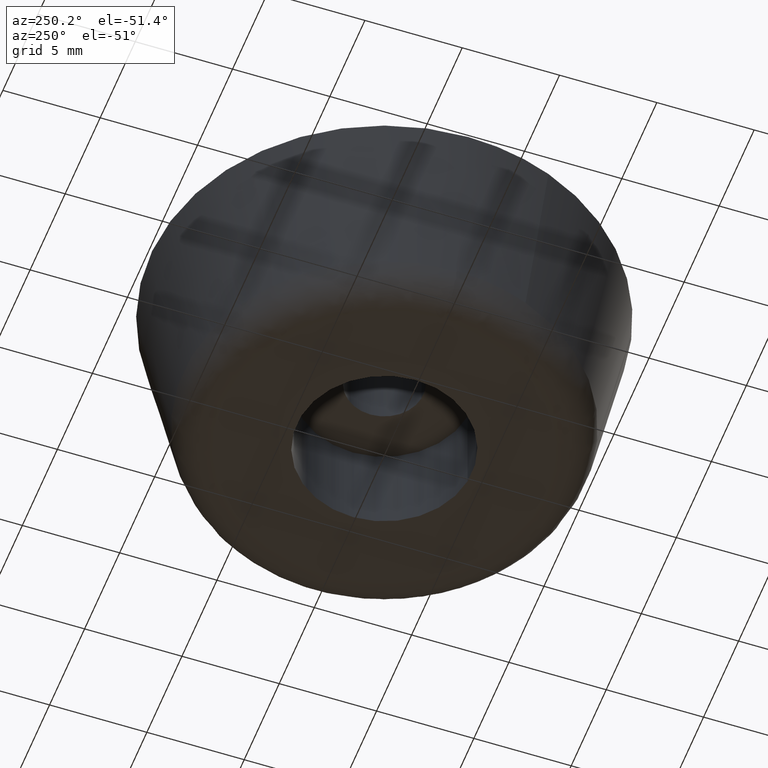
[diagram: clean part render]
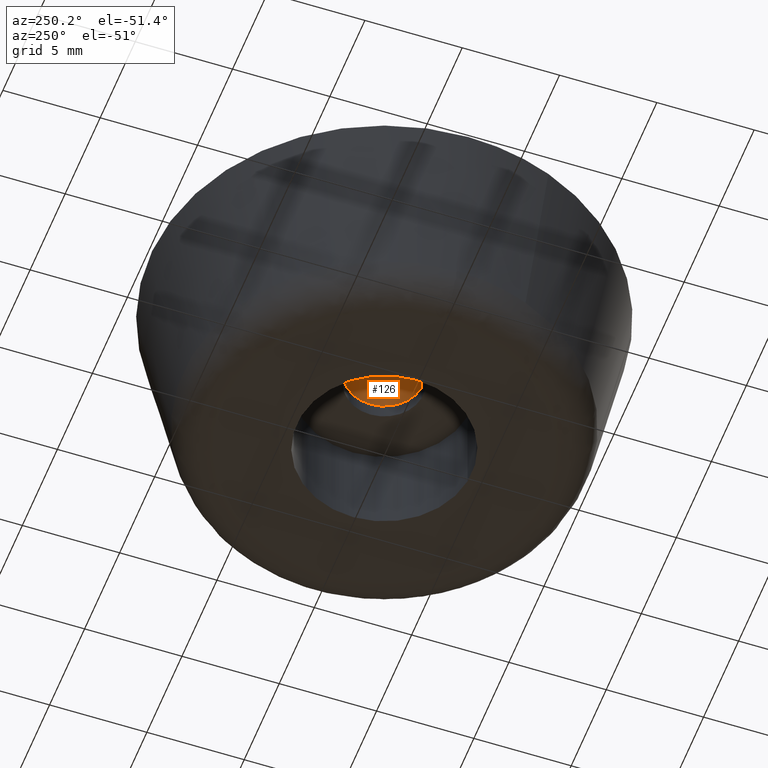
[diagram: same view with one face highlighted and labeled with its STEP entity id]
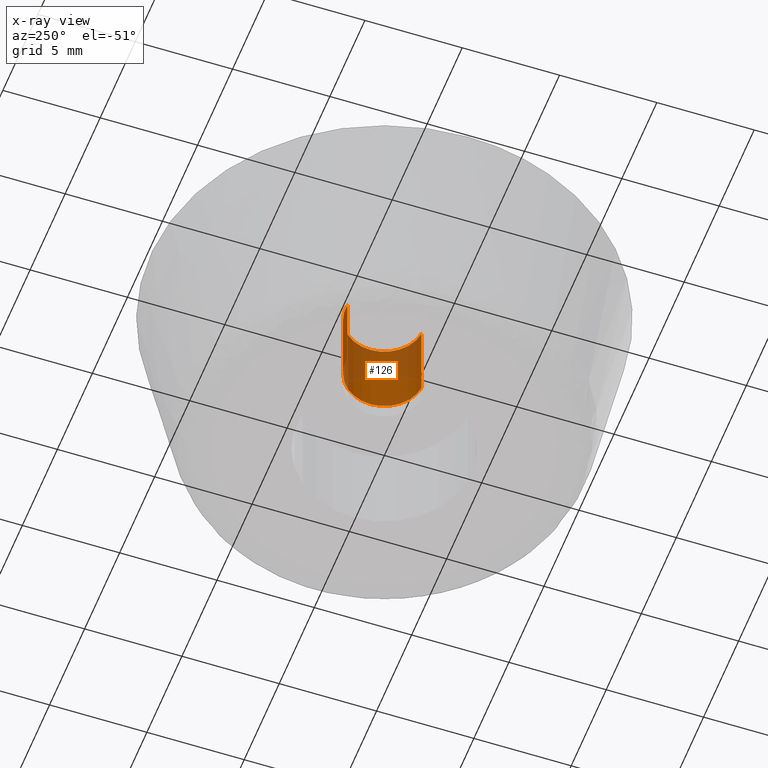
[diagram: x-ray of the same camera — body ghosted, the highlighted face saturated]
A machine part, auxiliary view. The second image highlights one B-rep face of the part: STEP entity #126.
The next image is the same camera in x-ray: the body ghosted, the highlighted face saturated — about 61% of this face is hidden behind the body in this view.
In plain terms, the highlighted cylindrical surface (partial cylindrical patch) has radius 2 mm, axis along (0, 0, 1).
Its self-contained STEP definition (entity closure, byte-faithful):
#126=ADVANCED_FACE('',(#279),#278,.F.);
#278=CYLINDRICAL_SURFACE('',#471,2.00000000000E+000);
#279=FACE_OUTER_BOUND('',#472,.T.);
#468=CARTESIAN_POINT('',(6.10924083871E-014,6.28629487979E-015,1.01050000000E+001));
#469=DIRECTION('',(2.76929706381E-014,2.84451388411E-015,1.00000000000E+000));
#470=DIRECTION('',(1.18034234657E-001,-9.93009526364E-001,-4.44089209851E-016));
#471=AXIS2_PLACEMENT_3D('',#468,#469,#470);
#472=EDGE_LOOP('',(#578,#579,#580,#581));
#578=ORIENTED_EDGE('',*,*,#647,.T.);
#579=ORIENTED_EDGE('',*,*,#657,.T.);
#580=ORIENTED_EDGE('',*,*,#641,.F.);
#581=ORIENTED_EDGE('',*,*,#658,.F.);
#641=EDGE_CURVE('',#884,#891,#892,.T.);
#647=EDGE_CURVE('',#933,#925,#934,.T.);
#657=EDGE_CURVE('',#925,#891,#998,.T.);
#658=EDGE_CURVE('',#933,#884,#1004,.T.);
#884=VERTEX_POINT('',#1183);
#891=VERTEX_POINT('',#1188);
#892=CIRCLE('',#1192,2.00000000000E+000);
#925=VERTEX_POINT('',#1212);
#933=VERTEX_POINT('',#1218);
#934=CIRCLE('',#1222,2.00000000000E+000);
#998=(BOUNDED_CURVE() B_SPLINE_CURVE(1,(#1259,#1260),.UNSPECIFIED.,.F.,.F.) B_SPLINE_CURVE_WITH_KNOTS((2,2),(8.33333313467E-002,9.16666670832E-001),.UNSPECIFIED.) CURVE() GEOMETRIC_REPRESENTATION_ITEM() RATIONAL_B_SPLINE_CURVE((1.00000000000E+000,1.00000000000E+000)) REPRESENTATION_ITEM('') );
#1004=(BOUNDED_CURVE() B_SPLINE_CURVE(1,(#1261,#1262),.UNSPECIFIED.,.F.,.F.) B_SPLINE_CURVE_WITH_KNOTS((2,2),(8.33333333333E-002,9.16666666667E-001),.UNSPECIFIED.) CURVE() GEOMETRIC_REPRESENTATION_ITEM() RATIONAL_B_SPLINE_CURVE((7.50000000000E-001,7.50000000000E-001)) REPRESENTATION_ITEM('') );
#1183=CARTESIAN_POINT('',(-2.36411791321E-001,1.98597821361E+000,1.00000000000E+001));
#1188=CARTESIAN_POINT('',(2.36067743038E-001,-1.98601913906E+000,1.00000000000E+001));
#1189=CARTESIAN_POINT('',(-5.55111512313E-016,-3.33066907388E-016,1.00000000000E+001));
#1190=DIRECTION('',(1.01880182416E-014,-5.77861428570E-016,-1.00000000000E+000));
#1191=DIRECTION('',(-1.00000000000E+000,1.94289029309E-016,-1.01880182416E-014));
#1192=AXIS2_PLACEMENT_3D('',#1189,#1190,#1191);
#1212=CARTESIAN_POINT('',(2.36067743038E-001,-1.98601913906E+000,5.80000000000E+000));
#1218=CARTESIAN_POINT('',(-2.36411791321E-001,1.98597821361E+000,5.80000000000E+000));
#1219=CARTESIAN_POINT('',(7.77156117238E-016,3.33066907388E-016,5.80000000000E+000));
#1220=DIRECTION('',(1.50938206526E-015,-2.05666435028E-015,-1.00000000000E+000));
#1221=DIRECTION('',(-1.00000000000E+000,-5.82867087928E-016,-1.50938206526E-015));
#1222=AXIS2_PLACEMENT_3D('',#1219,#1220,#1221);
#1259=CARTESIAN_POINT('',(2.36068469314E-001,-1.98601905273E+000,5.79999998999E+000));
#1260=CARTESIAN_POINT('',(2.36068469314E-001,-1.98601905273E+000,1.00000000210E+001));
#1261=CARTESIAN_POINT('',(-2.36068469314E-001,1.98601905273E+000,5.80000000000E+000));
#1262=CARTESIAN_POINT('',(-2.36068469314E-001,1.98601905273E+000,1.00000000000E+001));